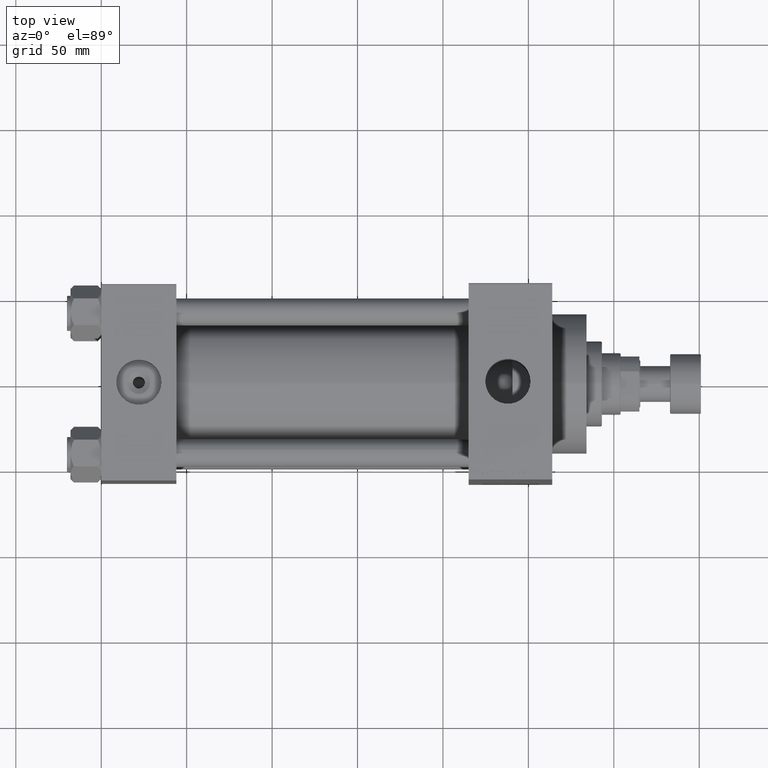
[diagram: clean part render]
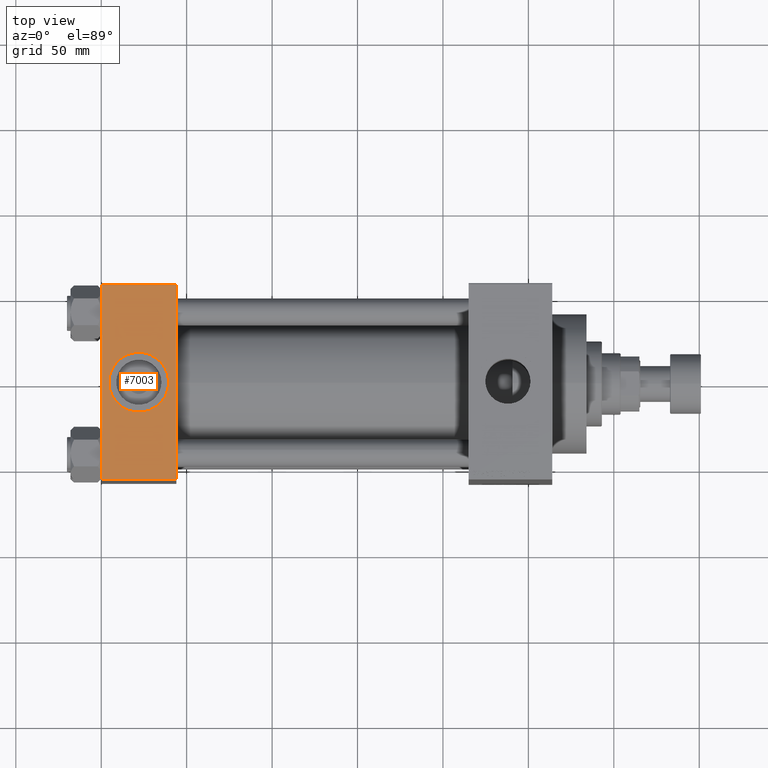
[diagram: same view with one face highlighted and labeled with its STEP entity id]
A machine part, top view. The second image highlights one B-rep face of the part: STEP entity #7003.
In plain terms, the highlighted planar face has unit normal (0, 0, -1).
Its self-contained STEP definition (entity closure, byte-faithful):
#584 = EDGE_CURVE ( 'NONE', #6140, #15172, #17345, .T. ) ;
#1637 = CIRCLE ( 'NONE', #16493, 17.50000000000000000 ) ;
#1850 = EDGE_CURVE ( 'NONE', #9863, #41540, #1637, .T. ) ;
#4471 = FACE_OUTER_BOUND ( 'NONE', #7018, .T. ) ;
#5089 = CARTESIAN_POINT ( 'NONE',  ( 22.00000000000000000, -8.673617379884035472E-15, 57.50000000000000000 ) ) ;
#6140 = VERTEX_POINT ( 'NONE', #10360 ) ;
#6418 = ORIENTED_EDGE ( 'NONE', *, *, #39275, .F. ) ;
#6490 = CARTESIAN_POINT ( 'NONE',  ( 44.00000000000000000, -57.00000000000003553, 57.49999999999999289 ) ) ;
#6509 = LINE ( 'NONE', #47561, #41958 ) ;
#7003 = ADVANCED_FACE ( 'NONE', ( #26498, #4471 ), #37703, .F. ) ;
#7018 = EDGE_LOOP ( 'NONE', ( #21178, #42172, #41765, #10622 ) ) ;
#9863 = VERTEX_POINT ( 'NONE', #33931 ) ;
#10143 = DIRECTION ( 'NONE',  ( 1.000000000000000000, 0.000000000000000000, 0.000000000000000000 ) ) ;
#10357 = CARTESIAN_POINT ( 'NONE',  ( 0.000000000000000000, 57.49999999999999289, 57.50000000000000711 ) ) ;
#10360 = CARTESIAN_POINT ( 'NONE',  ( 44.00000000000000000, 57.00000000000000711, 57.50000000000000711 ) ) ;
#10622 = ORIENTED_EDGE ( 'NONE', *, *, #584, .T. ) ;
#11397 = DIRECTION ( 'NONE',  ( 0.000000000000000000, 0.000000000000000000, 1.000000000000000000 ) ) ;
#11573 = DIRECTION ( 'NONE',  ( 0.000000000000000000, 1.206764157201257045E-16, -1.000000000000000000 ) ) ;
#12545 = CARTESIAN_POINT ( 'NONE',  ( 44.00000000000000000, 57.49999999999999289, 57.50000000000000711 ) ) ;
#12660 = VERTEX_POINT ( 'NONE', #6490 ) ;
#13831 = CARTESIAN_POINT ( 'NONE',  ( 44.00000000000000000, -57.00000000000003553, 57.49999999999999289 ) ) ;
#15172 = VERTEX_POINT ( 'NONE', #43271 ) ;
#16493 = AXIS2_PLACEMENT_3D ( 'NONE', #22878, #11397, #18258 ) ;
#17345 = LINE ( 'NONE', #21259, #29773 ) ;
#18068 = DIRECTION ( 'NONE',  ( -1.000000000000000000, 0.000000000000000000, 0.000000000000000000 ) ) ;
#18258 = DIRECTION ( 'NONE',  ( 1.000000000000000000, 0.000000000000000000, 0.000000000000000000 ) ) ;
#19643 = AXIS2_PLACEMENT_3D ( 'NONE', #5089, #20014, #27610 ) ;
#20014 = DIRECTION ( 'NONE',  ( 0.000000000000000000, 0.000000000000000000, 1.000000000000000000 ) ) ;
#20373 = EDGE_LOOP ( 'NONE', ( #26279, #6418 ) ) ;
#21178 = ORIENTED_EDGE ( 'NONE', *, *, #29402, .T. ) ;
#21259 = CARTESIAN_POINT ( 'NONE',  ( 0.000000000000000000, 57.00000000000000711, 57.50000000000000711 ) ) ;
#22878 = CARTESIAN_POINT ( 'NONE',  ( 22.00000000000000000, -8.673617379884035472E-15, 57.50000000000000000 ) ) ;
#24754 = CARTESIAN_POINT ( 'NONE',  ( 4.499999999999997335, -6.530485481376167224E-15, 57.50000000000000000 ) ) ;
#25351 = DIRECTION ( 'NONE',  ( 0.000000000000000000, -1.000000000000000000, -1.206764157201257045E-16 ) ) ;
#25896 = CIRCLE ( 'NONE', #19643, 17.50000000000000000 ) ;
#26279 = ORIENTED_EDGE ( 'NONE', *, *, #1850, .F. ) ;
#26498 = FACE_BOUND ( 'NONE', #20373, .T. ) ;
#26829 = AXIS2_PLACEMENT_3D ( 'NONE', #12545, #11573, #30167 ) ;
#27610 = DIRECTION ( 'NONE',  ( 1.000000000000000000, 0.000000000000000000, 0.000000000000000000 ) ) ;
#29402 = EDGE_CURVE ( 'NONE', #15172, #42739, #36028, .T. ) ;
#29773 = VECTOR ( 'NONE', #18068, 1000.000000000000000 ) ;
#30167 = DIRECTION ( 'NONE',  ( 0.000000000000000000, 1.000000000000000000, 1.206764157201257045E-16 ) ) ;
#30516 = EDGE_CURVE ( 'NONE', #6140, #12660, #6509, .T. ) ;
#33931 = CARTESIAN_POINT ( 'NONE',  ( 39.50000000000000000, -8.673617379884035472E-15, 57.50000000000000000 ) ) ;
#36028 = LINE ( 'NONE', #10357, #48163 ) ;
#37703 = PLANE ( 'NONE',  #26829 ) ;
#39275 = EDGE_CURVE ( 'NONE', #41540, #9863, #25896, .T. ) ;
#41540 = VERTEX_POINT ( 'NONE', #24754 ) ;
#41566 = VECTOR ( 'NONE', #10143, 1000.000000000000000 ) ;
#41765 = ORIENTED_EDGE ( 'NONE', *, *, #30516, .F. ) ;
#41958 = VECTOR ( 'NONE', #25351, 1000.000000000000000 ) ;
#42172 = ORIENTED_EDGE ( 'NONE', *, *, #42942, .T. ) ;
#42233 = LINE ( 'NONE', #13831, #41566 ) ;
#42739 = VERTEX_POINT ( 'NONE', #44689 ) ;
#42942 = EDGE_CURVE ( 'NONE', #42739, #12660, #42233, .T. ) ;
#43271 = CARTESIAN_POINT ( 'NONE',  ( 0.000000000000000000, 57.00000000000000711, 57.50000000000000711 ) ) ;
#43861 = DIRECTION ( 'NONE',  ( 0.000000000000000000, -1.000000000000000000, -1.206764157201257045E-16 ) ) ;
#44689 = CARTESIAN_POINT ( 'NONE',  ( 0.000000000000000000, -57.00000000000003553, 57.49999999999999289 ) ) ;
#47561 = CARTESIAN_POINT ( 'NONE',  ( 44.00000000000000000, 57.49999999999999289, 57.50000000000000711 ) ) ;
#48163 = VECTOR ( 'NONE', #43861, 1000.000000000000000 ) ;